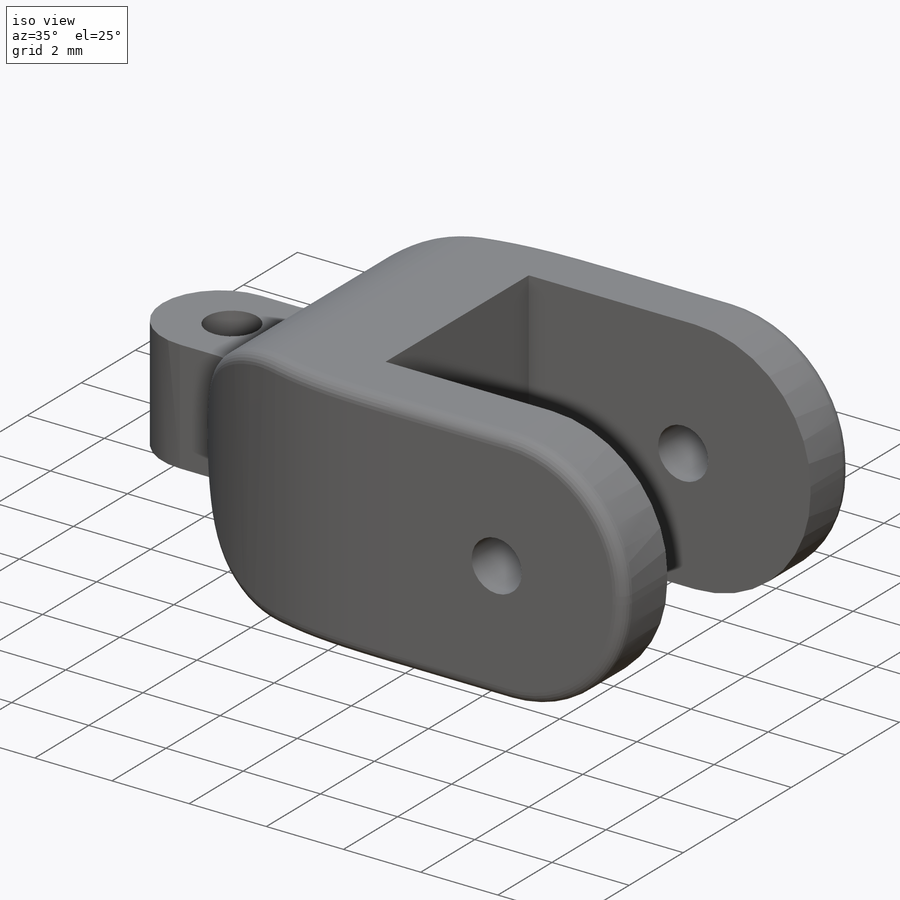
[diagram: iso view]
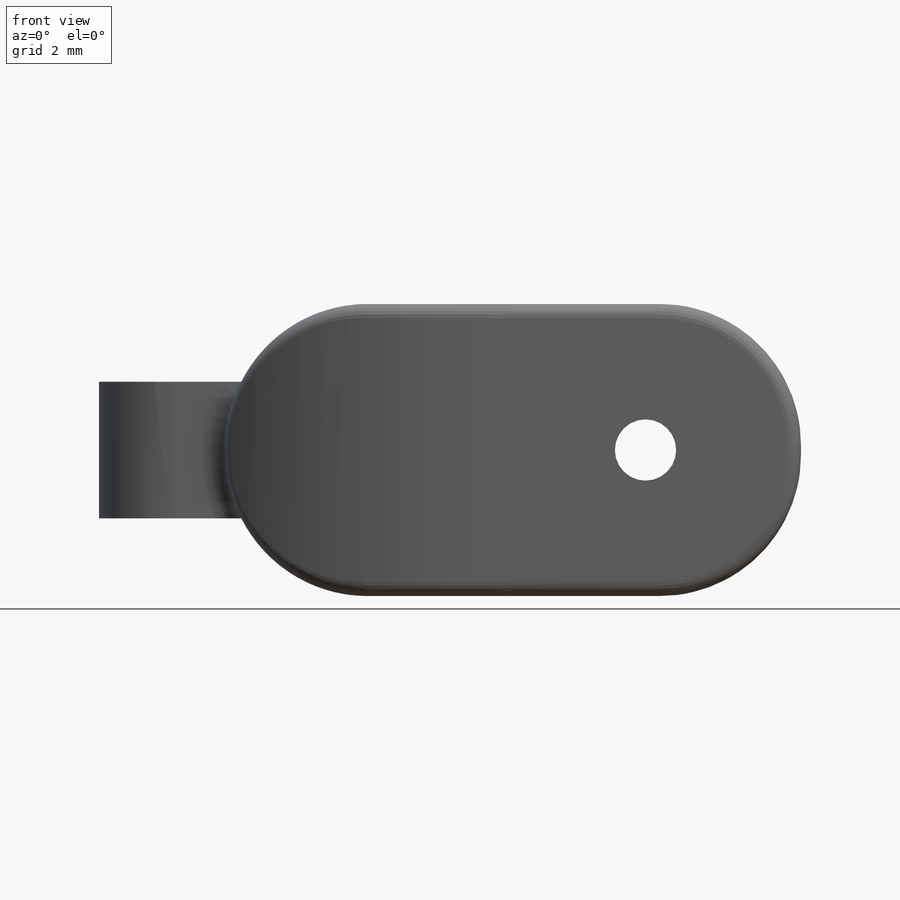
[diagram: front view]
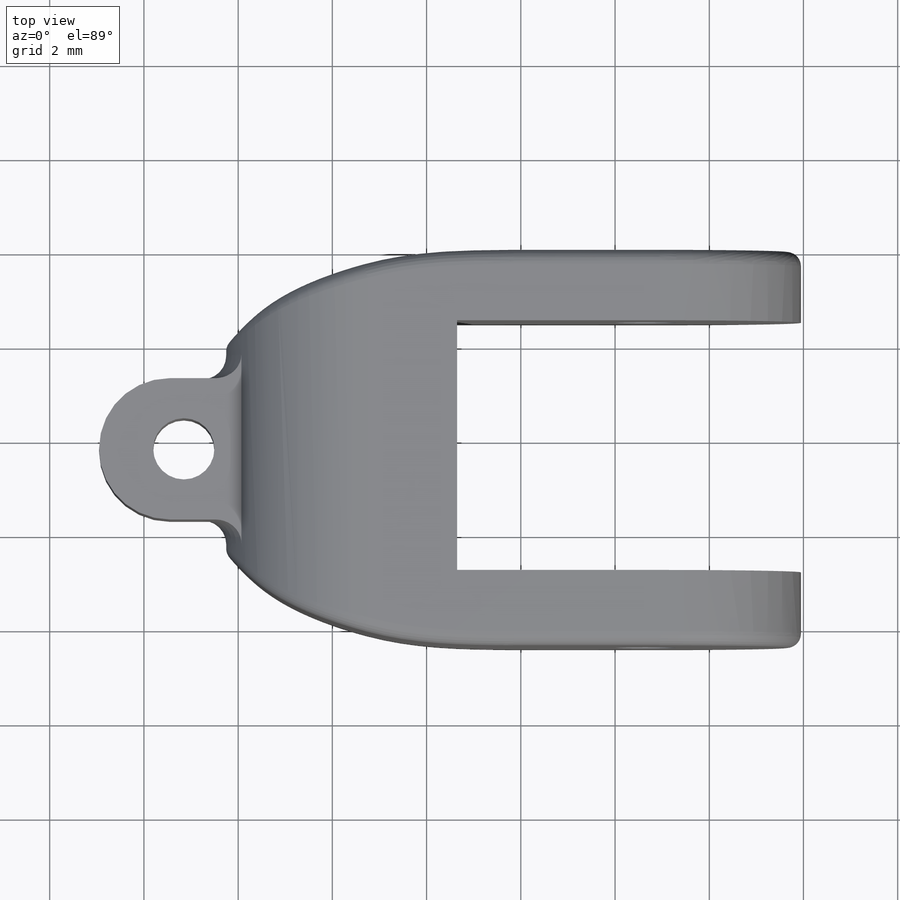
[diagram: top view]
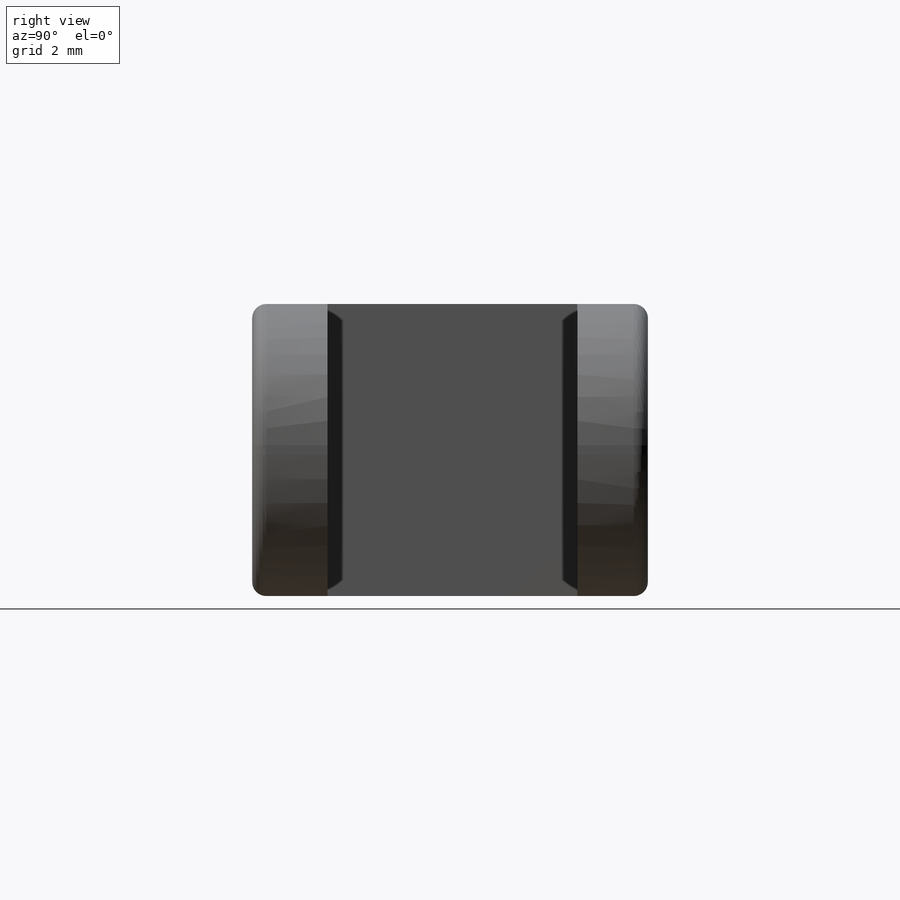
[diagram: right view]
SOLIDWORKS PART (.sldprt)
format: sldprt  version: not decoded by parser v0  size: 611,328 bytes
history: native  units: mm
features: sketch x6, cut_extrude x4, fillet x4, extrude x2, material x1 (+14 scaffold rows collapsed)
feature tree (31):
  scaffold x14  (default folders/planes/origin — collapsed)
  material  "Material <not specified>"
  sketch  "Sketch1"  dims[c1.D3=3.1mm c1.D1=6.2mm c1.D2=7.5mm c2.D1=6.2mm c2.D2=12.2mm c2.D3=6.2mm]
  extrude  "Extrude1"  Depth=8.4mm
  sketch  "Sketch2"  dims[D1=7.3mm D2=5.3mm D3=1.6mm D4=20.0mm]
  cut_extrude  "Extrude2"  [1 undecoded]
  sketch  "Sketch3"  dims[D1=3.0mm D2=2.9mm D3=2.7mm D4=1.65mm D5=~1.17662mm]
  extrude  "Extrude3"  Depth=7.6mm
  fillet  "Fillet1"  Radius=1.5mm
  sketch  "Sketch4"  dims[D2=1.3mm D1=1.8mm]
  cut_extrude  "Extrude4"  [1 undecoded]
  sketch  "Sketch5"  dims[D3=~3.009575mm D1=1.5mm D2=1.5mm]
  cut_extrude  "Extrude5"  [1 undecoded]
  fillet  "Fillet2"  Radius=0.5mm
  fillet  "Fillet3"  Radius=0.3mm
  fillet  "Fillet4"  Radius=0.3mm
  sketch  "Sketch6"  dims[D2=1.3mm D1=3.3mm]
  cut_extrude  "Extrude6"  [1 undecoded]
decode coverage: 12 of 16 modeling features carry decoded parameters
note: ~ marks probable driven/reference dimensions
note: 4 parameter values undecoded
summary: no parameter record found for 4 features
note: suppression state not decoded; provenance and decode notes live in map.json
